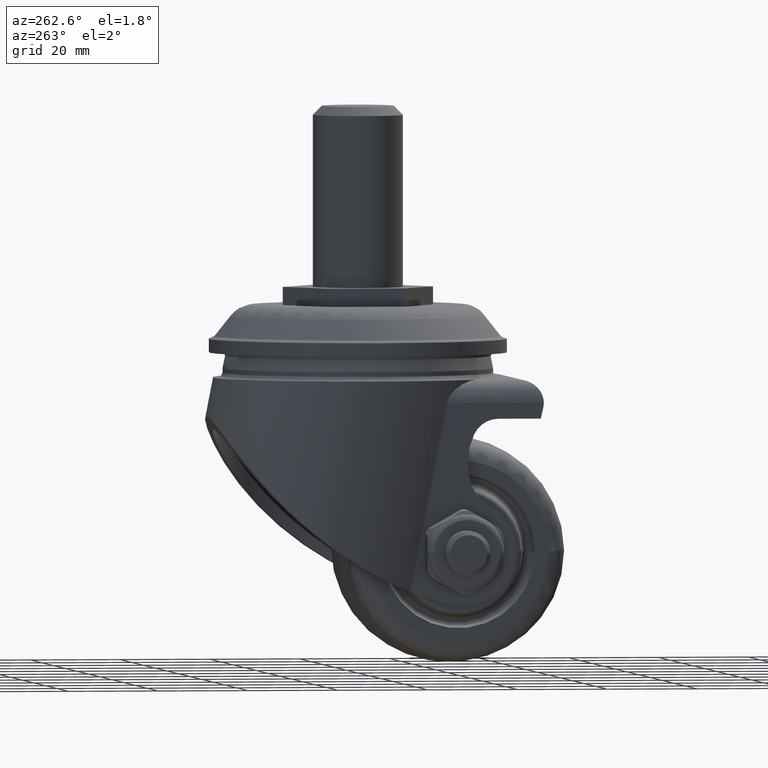
[diagram: clean part render]
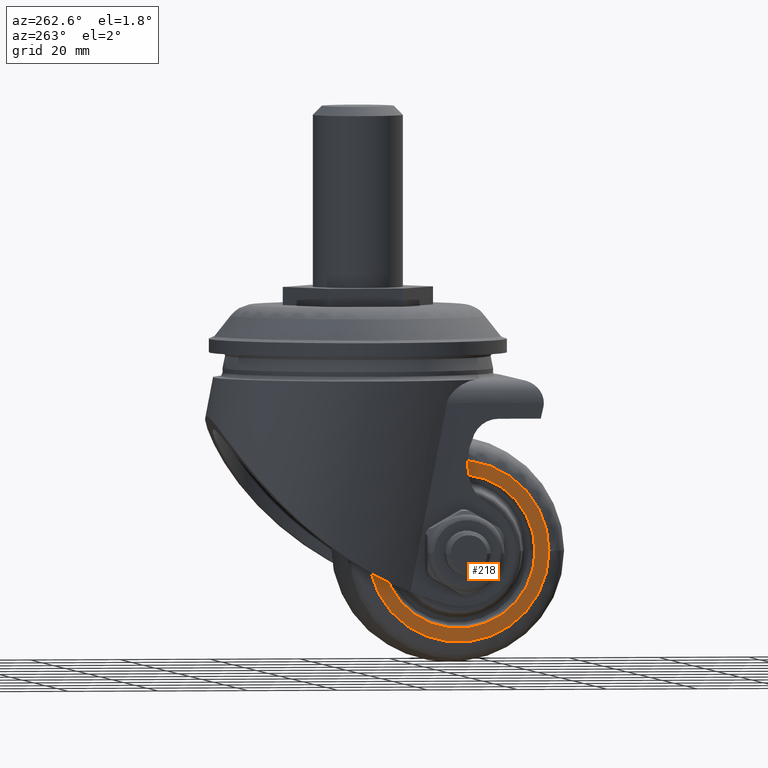
[diagram: same view with one face highlighted and labeled with its STEP entity id]
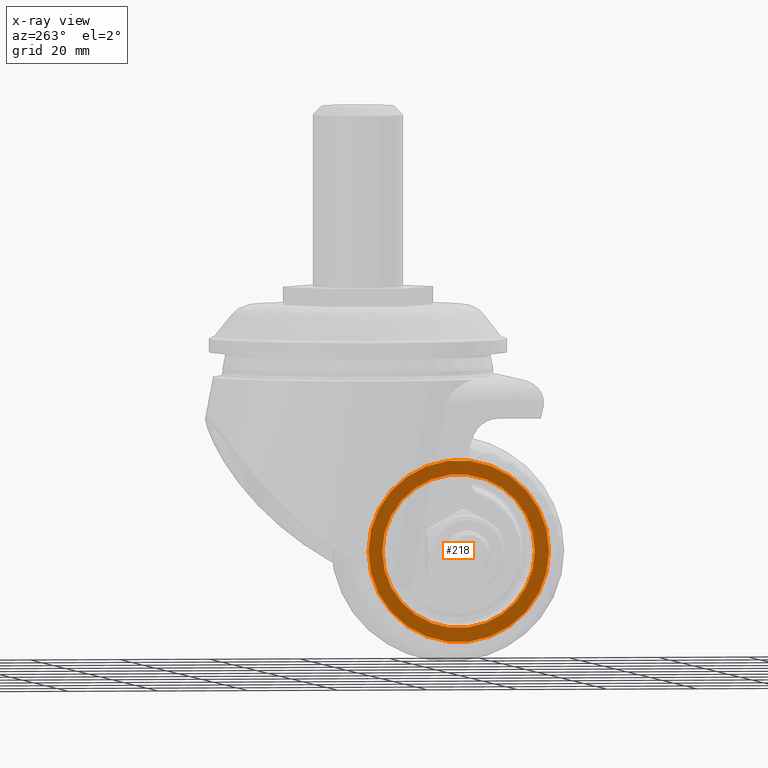
[diagram: x-ray of the same camera — body ghosted, the highlighted face saturated]
A machine part, auxiliary view. The second image highlights one B-rep face of the part: STEP entity #218.
The next image is the same camera in x-ray: the body ghosted, the highlighted face saturated — about 0% of this face is hidden behind the body in this view.
In plain terms, the highlighted planar face has unit normal (-1, 0, 0).
Its self-contained STEP definition (entity closure, byte-faithful):
#218=ADVANCED_FACE('',(#1359,#1360),#1358,.T.);
#1358=PLANE('',#2873);
#1359=FACE_OUTER_BOUND('',#2874,.T.);
#1360=FACE_BOUND('',#2875,.T.);
#2870=CARTESIAN_POINT('',(-1.90000000000E+01,-4.18178757458E+01,-2.61555253037E+01));
#2871=DIRECTION('',(-1.00000000000E+00,0.00000000000E+00,0.00000000000E+00));
#2872=DIRECTION('',(0.00000000000E+00,0.00000000000E+00,1.00000000000E+00));
#2873=AXIS2_PLACEMENT_3D('',#2870,#2871,#2872);
#2874=EDGE_LOOP('',(#4180,#4181));
#2875=EDGE_LOOP('',(#4182,#4183));
#4180=ORIENTED_EDGE('',*,*,#4699,.F.);
#4181=ORIENTED_EDGE('',*,*,#4700,.F.);
#4182=ORIENTED_EDGE('',*,*,#4701,.T.);
#4183=ORIENTED_EDGE('',*,*,#4702,.T.);
#4699=EDGE_CURVE('',#6541,#6542,#6543,.T.);
#4700=EDGE_CURVE('',#6542,#6541,#6549,.T.);
#4701=EDGE_CURVE('',#6555,#6556,#6557,.T.);
#4702=EDGE_CURVE('',#6556,#6555,#6563,.T.);
#6541=VERTEX_POINT('',#8775);
#6542=VERTEX_POINT('',#8776);
#6543=CIRCLE('',#8780,2.01196348490E+01);
#6549=CIRCLE('',#8784,2.01196348490E+01);
#6555=VERTEX_POINT('',#8785);
#6556=VERTEX_POINT('',#8786);
#6557=CIRCLE('',#8790,1.70153845000E+01);
#6563=CIRCLE('',#8794,1.70153845000E+01);
#8775=CARTESIAN_POINT('',(-1.90000000000E+01,0.00000000000E+00,2.01196348490E+01));
#8776=CARTESIAN_POINT('',(-1.90000000000E+01,0.00000000000E+00,-2.01196348490E+01));
#8777=CARTESIAN_POINT('',(-1.90000000000E+01,0.00000000000E+00,0.00000000000E+00));
#8778=DIRECTION('',(1.00000000000E+00,0.00000000000E+00,0.00000000000E+00));
#8779=DIRECTION('',(0.00000000000E+00,-1.22460635382E-16,-1.00000000000E+00));
#8780=AXIS2_PLACEMENT_3D('',#8777,#8778,#8779);
#8781=CARTESIAN_POINT('',(-1.90000000000E+01,0.00000000000E+00,0.00000000000E+00));
#8782=DIRECTION('',(1.00000000000E+00,0.00000000000E+00,0.00000000000E+00));
#8783=DIRECTION('',(0.00000000000E+00,-1.22460635382E-16,-1.00000000000E+00));
#8784=AXIS2_PLACEMENT_3D('',#8781,#8782,#8783);
#8785=CARTESIAN_POINT('',(-1.90000000000E+01,0.00000000000E+00,-1.70153845000E+01));
#8786=CARTESIAN_POINT('',(-1.90000000000E+01,1.18423789293E-15,1.70153845000E+01));
#8787=CARTESIAN_POINT('',(-1.90000000000E+01,0.00000000000E+00,0.00000000000E+00));
#8788=DIRECTION('',(1.00000000000E+00,0.00000000000E+00,0.00000000000E+00));
#8789=DIRECTION('',(0.00000000000E+00,-1.22460635382E-16,-1.00000000000E+00));
#8790=AXIS2_PLACEMENT_3D('',#8787,#8788,#8789);
#8791=CARTESIAN_POINT('',(-1.90000000000E+01,0.00000000000E+00,0.00000000000E+00));
#8792=DIRECTION('',(1.00000000000E+00,0.00000000000E+00,0.00000000000E+00));
#8793=DIRECTION('',(0.00000000000E+00,-1.22460635382E-16,-1.00000000000E+00));
#8794=AXIS2_PLACEMENT_3D('',#8791,#8792,#8793);